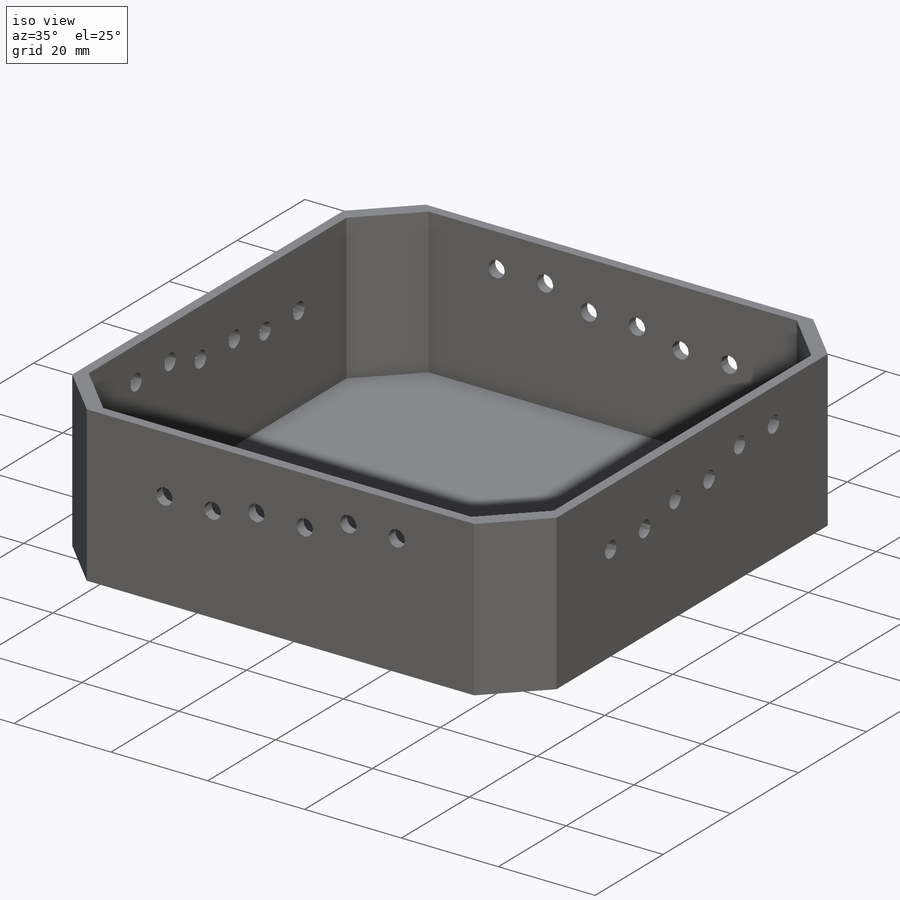
[diagram: iso view]
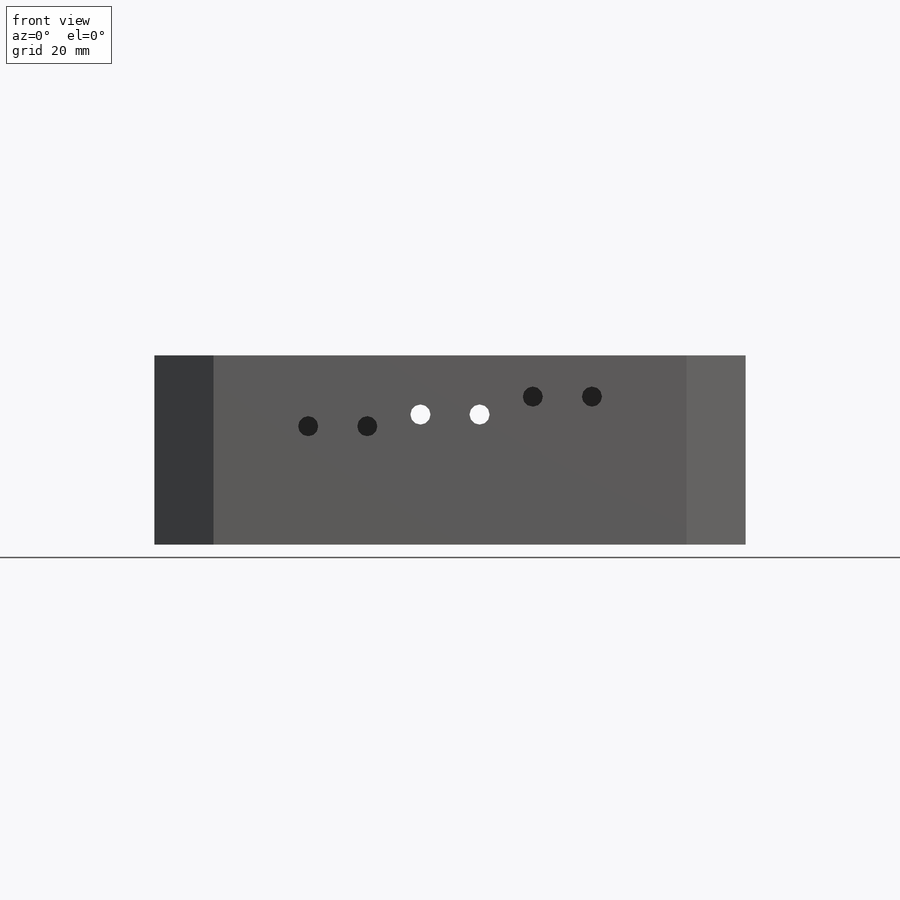
[diagram: front view]
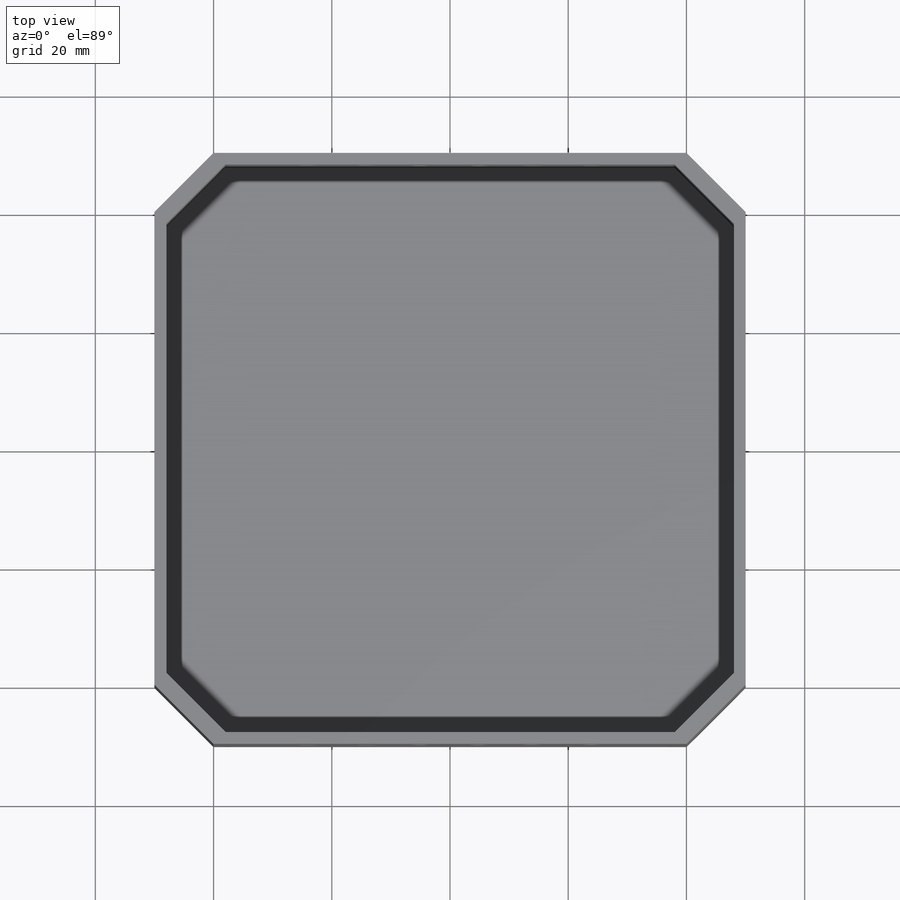
[diagram: top view]
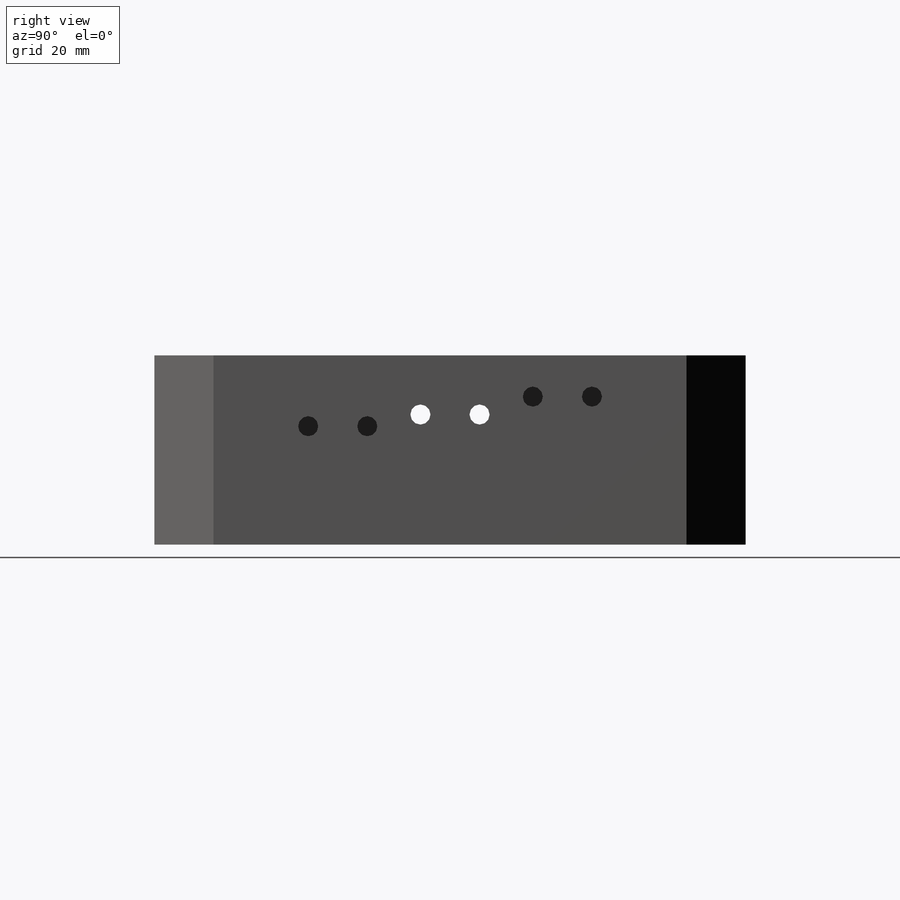
[diagram: right view]
SOLIDWORKS PART (.sldprt)
format: sldprt  version: not decoded by parser v0  size: 470,528 bytes
history: native  units: mm
features: sketch x4, extrude x2, material x1, chamfer x1, hole x1, pattern_circular x1 (+13 scaffold rows collapsed)
feature tree (23):
  scaffold x13  (default folders/planes/origin — collapsed)
  material  "PLA Black"
  sketch  "Sketch1"  dims[D1=100.0mm]
  extrude  "Boss-Extrude1"  Depth=2mm
  sketch  "Sketch2"  dims[D1=0.0mm D2=2.0mm]
  extrude  "Boss-Extrude2"  Depth=30mm
  chamfer  "Chamfer1"  Distance=10mm Angle=45deg
  hole  "M3 Clearance Hole1"  Diameter=3.4mm Depth=5mm
  sketch  "Sketch4"  dims[D1=10.0mm D2=7.0mm D3=10.0mm D4=12.0mm D5=~16.376307mm]
  sketch  "Sketch3"  dims[hole-wizard template sketch: 47 standard entries collapsed; hole parameters kept: c15.Hole Depth=5.0mm c15.D3=~14.816244mm c15.Drill Angle=118.0deg]
  pattern_circular  "CirPattern1"  Count=4 Angle=360deg
decode coverage: 9 of 9 modeling features carry decoded parameters
note: ~ marks probable driven/reference dimensions
note: suppression state not decoded; provenance and decode notes live in map.json
